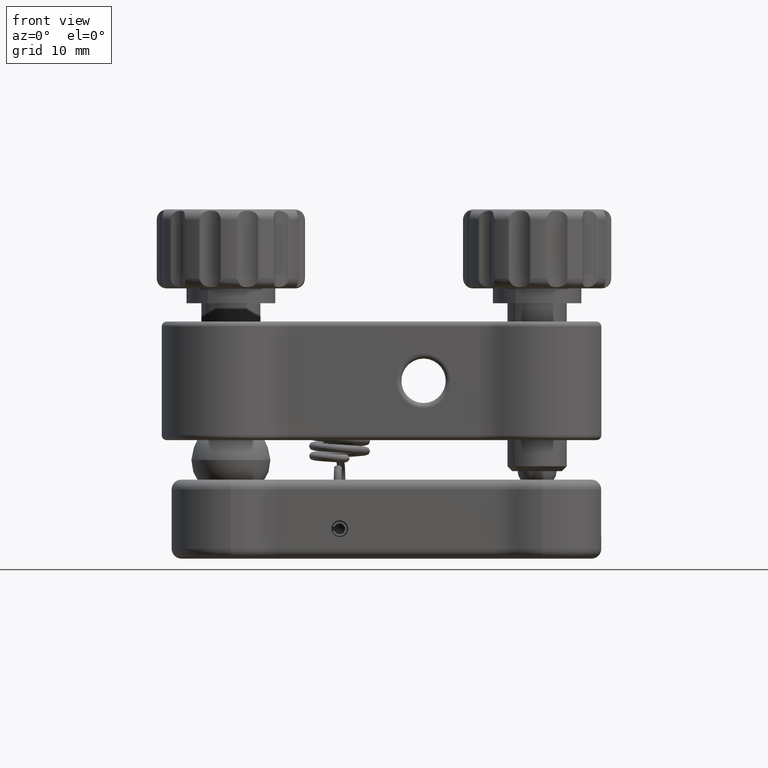
[diagram: clean part render]
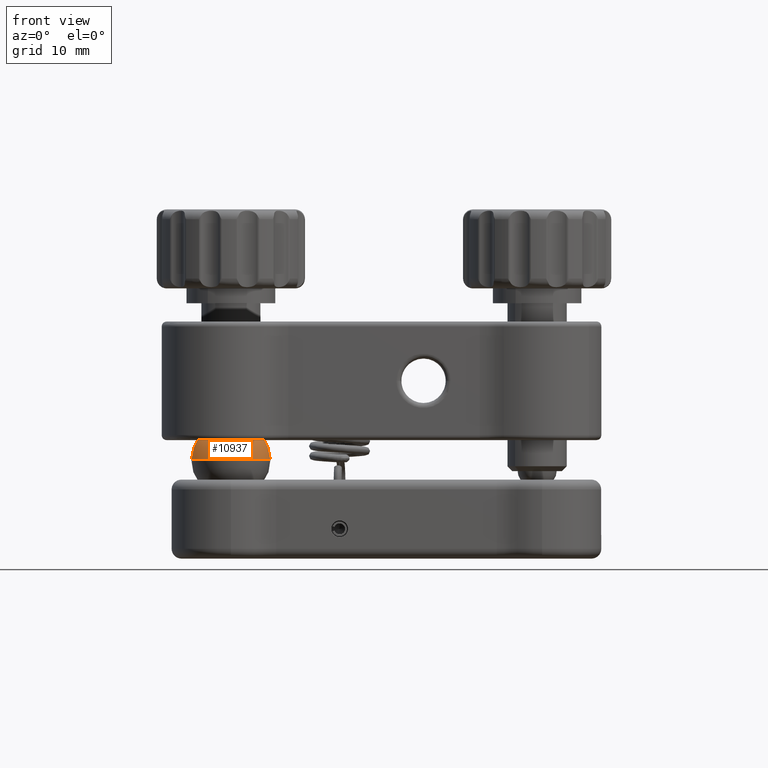
[diagram: same view with one face highlighted and labeled with its STEP entity id]
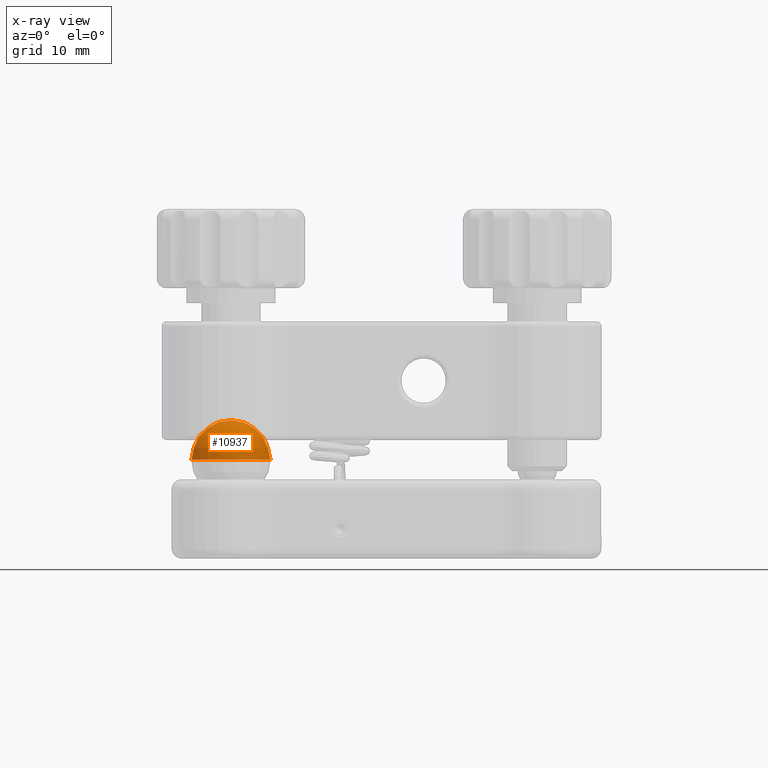
[diagram: x-ray of the same camera — body ghosted, the highlighted face saturated]
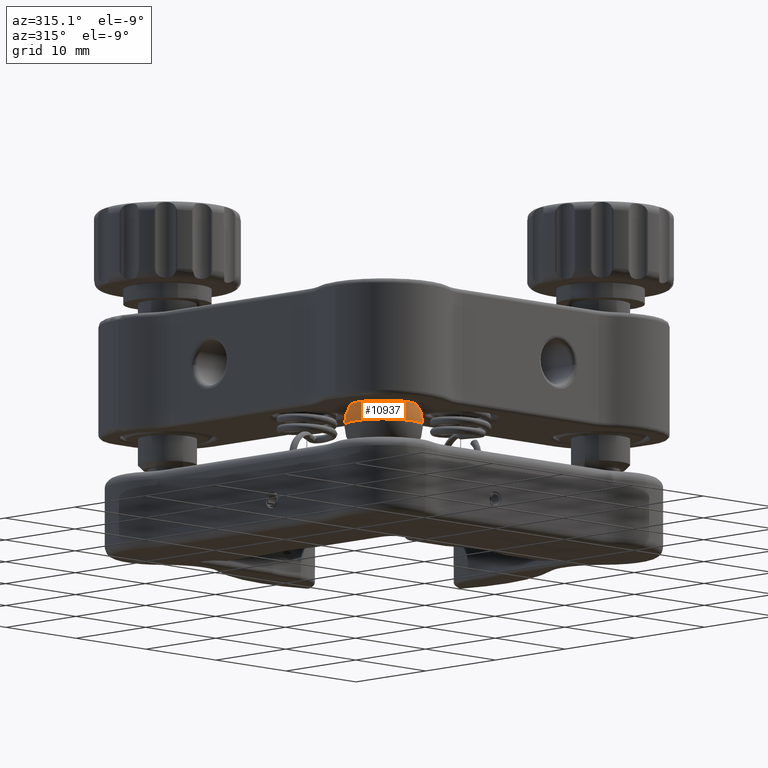
[diagram: same view with one face highlighted and labeled with its STEP entity id]
A machine part, front view. The second image highlights one B-rep face of the part: STEP entity #10937.
The next image is the same camera in x-ray: the body ghosted, the highlighted face saturated — about 0% of this face is hidden behind the body in this view.
A second angle (auxiliary view) of the same face is appended — the face is thin or edge-on in the first view.
In plain terms, the highlighted spherical surface has radius 4 mm.
Its self-contained STEP definition (entity closure, byte-faithful):
#79 = CARTESIAN_POINT ( 'NONE',  ( 24.18022454005431500, 1.376723006667041800E-015, -8.000000000000000000 ) ) ;
#2865 = DIRECTION ( 'NONE',  ( 0.0000000000000000000, 1.000000000000000000, 0.0000000000000000000 ) ) ;
#3147 = AXIS2_PLACEMENT_3D ( 'NONE', #17334, #15098, #2865 ) ;
#3160 = DIRECTION ( 'NONE',  ( 0.0000000000000000000, 1.000000000000000000, 0.0000000000000000000 ) ) ;
#3566 = EDGE_LOOP ( 'NONE', ( #5730, #25555 ) ) ;
#3666 = EDGE_CURVE ( 'NONE', #22699, #21927, #19978, .T. ) ;
#5232 = EDGE_CURVE ( 'NONE', #22699, #21927, #9652, .T. ) ;
#5730 = ORIENTED_EDGE ( 'NONE', *, *, #5232, .F. ) ;
#5733 = DIRECTION ( 'NONE',  ( 1.000000000000000000, 0.0000000000000000000, 0.0000000000000000000 ) ) ;
#7012 = CARTESIAN_POINT ( 'NONE',  ( 20.18022454005431500, 1.621652366496512500E-015, -8.000000000000000000 ) ) ;
#8763 = AXIS2_PLACEMENT_3D ( 'NONE', #79, #18090, #5733 ) ;
#9267 = FACE_OUTER_BOUND ( 'NONE', #3566, .T. ) ;
#9652 = CIRCLE ( 'NONE', #3147, 4.000000000000000000 ) ;
#10937 = ADVANCED_FACE ( 'NONE', ( #9267 ), #12151, .T. ) ;
#12151 = SPHERICAL_SURFACE ( 'NONE', #12507, 4.000000000000000000 ) ;
#12507 = AXIS2_PLACEMENT_3D ( 'NONE', #21399, #13324, #3160 ) ;
#13324 = DIRECTION ( 'NONE',  ( -0.0000000000000000000, 0.0000000000000000000, -1.000000000000000000 ) ) ;
#15098 = DIRECTION ( 'NONE',  ( 0.0000000000000000000, 1.224646799147353200E-016, -1.000000000000000000 ) ) ;
#17334 = CARTESIAN_POINT ( 'NONE',  ( 24.18022454005431500, 1.376723006667041800E-015, -8.000000000000000000 ) ) ;
#18090 = DIRECTION ( 'NONE',  ( -0.0000000000000000000, 0.0000000000000000000, 1.000000000000000000 ) ) ;
#19978 = CIRCLE ( 'NONE', #8763, 4.000000000000000000 ) ;
#21399 = CARTESIAN_POINT ( 'NONE',  ( 24.18022454005431500, 1.376723006667041800E-015, -8.000000000000000000 ) ) ;
#21927 = VERTEX_POINT ( 'NONE', #7012 ) ;
#22699 = VERTEX_POINT ( 'NONE', #24149 ) ;
#24149 = CARTESIAN_POINT ( 'NONE',  ( 28.18022454005431500, 1.621652366496512500E-015, -8.000000000000000000 ) ) ;
#25555 = ORIENTED_EDGE ( 'NONE', *, *, #3666, .T. ) ;